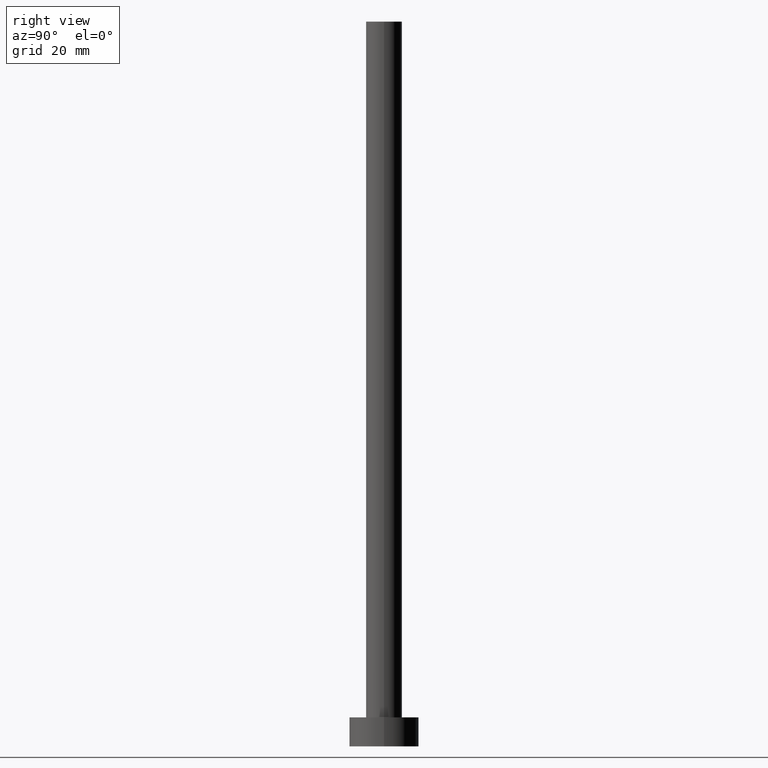
[diagram: clean part render]
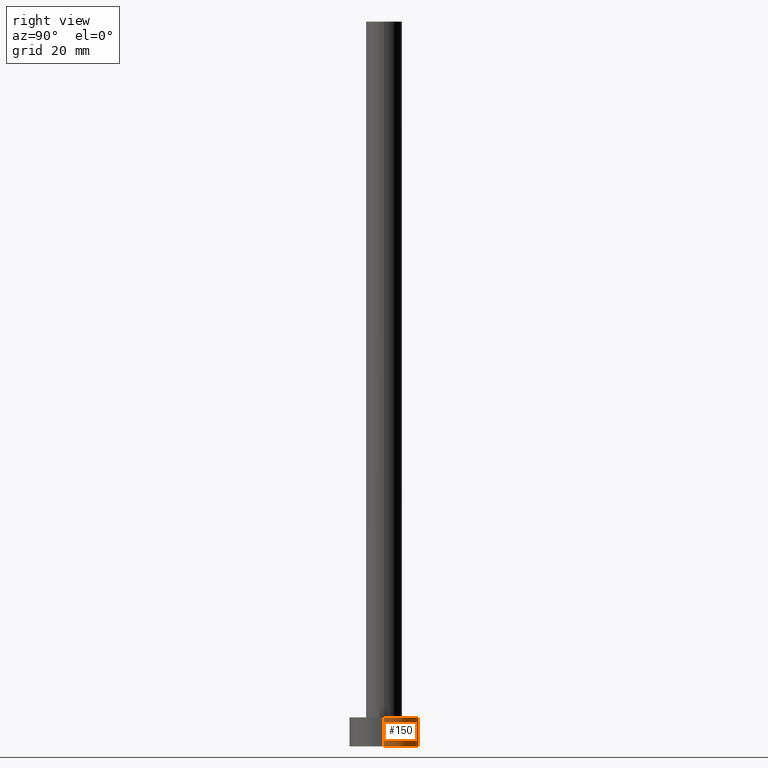
[diagram: same view with one face highlighted and labeled with its STEP entity id]
A machine part, right view. The second image highlights one B-rep face of the part: STEP entity #150.
In plain terms, the highlighted cylindrical surface (edge-blend (fillet) strip) has radius 6 mm, axis along (-0, -0, -1).
Its self-contained STEP definition (entity closure, byte-faithful):
#9 = EDGE_CURVE ( 'NONE', #189, #236, #89, .T. ) ;
#22 = CARTESIAN_POINT ( 'NONE',  ( -6.000000000000000888, 0.000000000000000000, 5.000000000000000000 ) ) ;
#23 = VERTEX_POINT ( 'NONE', #253 ) ;
#40 = EDGE_CURVE ( 'NONE', #23, #236, #247, .T. ) ;
#49 = CARTESIAN_POINT ( 'NONE',  ( 0.000000000000000000, 0.000000000000000000, 0.000000000000000000 ) ) ;
#57 = DIRECTION ( 'NONE',  ( 1.000000000000000000, 0.000000000000000000, 0.000000000000000000 ) ) ;
#59 = CARTESIAN_POINT ( 'NONE',  ( 6.000000000000000888, 7.347880794884120722E-16, 5.000000000000000000 ) ) ;
#75 = CARTESIAN_POINT ( 'NONE',  ( -6.000000000000000888, 0.000000000000000000, 5.000000000000000000 ) ) ;
#77 = CARTESIAN_POINT ( 'NONE',  ( -6.000000000000000888, 0.000000000000000000, 0.000000000000000000 ) ) ;
#78 = FACE_OUTER_BOUND ( 'NONE', #193, .T. ) ;
#79 = CIRCLE ( 'NONE', #218, 6.000000000000000888 ) ;
#89 = LINE ( 'NONE', #22, #145 ) ;
#91 = LINE ( 'NONE', #92, #224 ) ;
#92 = CARTESIAN_POINT ( 'NONE',  ( 6.000000000000000888, 7.347880794884120722E-16, 5.000000000000000000 ) ) ;
#96 = CARTESIAN_POINT ( 'NONE',  ( 0.000000000000000000, 0.000000000000000000, 5.000000000000000000 ) ) ;
#97 = EDGE_CURVE ( 'NONE', #154, #23, #91, .T. ) ;
#117 = CARTESIAN_POINT ( 'NONE',  ( 0.000000000000000000, 0.000000000000000000, 5.000000000000000000 ) ) ;
#131 = DIRECTION ( 'NONE',  ( 1.000000000000000000, 0.000000000000000000, 0.000000000000000000 ) ) ;
#145 = VECTOR ( 'NONE', #212, 1000.000000000000000 ) ;
#150 = ADVANCED_FACE ( 'NONE', ( #78 ), #239, .T. ) ;
#154 = VERTEX_POINT ( 'NONE', #59 ) ;
#155 = ORIENTED_EDGE ( 'NONE', *, *, #9, .F. ) ;
#162 = DIRECTION ( 'NONE',  ( 0.000000000000000000, 0.000000000000000000, 1.000000000000000000 ) ) ;
#171 = DIRECTION ( 'NONE',  ( 0.000000000000000000, 0.000000000000000000, 1.000000000000000000 ) ) ;
#174 = ORIENTED_EDGE ( 'NONE', *, *, #40, .T. ) ;
#178 = DIRECTION ( 'NONE',  ( -0.000000000000000000, -0.000000000000000000, -1.000000000000000000 ) ) ;
#182 = EDGE_CURVE ( 'NONE', #154, #189, #79, .T. ) ;
#184 = DIRECTION ( 'NONE',  ( -0.000000000000000000, -0.000000000000000000, -1.000000000000000000 ) ) ;
#189 = VERTEX_POINT ( 'NONE', #75 ) ;
#193 = EDGE_LOOP ( 'NONE', ( #194, #213, #174, #155 ) ) ;
#194 = ORIENTED_EDGE ( 'NONE', *, *, #182, .F. ) ;
#212 = DIRECTION ( 'NONE',  ( -0.000000000000000000, -0.000000000000000000, -1.000000000000000000 ) ) ;
#213 = ORIENTED_EDGE ( 'NONE', *, *, #97, .T. ) ;
#218 = AXIS2_PLACEMENT_3D ( 'NONE', #117, #162, #57 ) ;
#222 = DIRECTION ( 'NONE',  ( -1.000000000000000000, 0.000000000000000000, 0.000000000000000000 ) ) ;
#224 = VECTOR ( 'NONE', #178, 1000.000000000000000 ) ;
#236 = VERTEX_POINT ( 'NONE', #77 ) ;
#239 = CYLINDRICAL_SURFACE ( 'NONE', #240, 6.000000000000000888 ) ;
#240 = AXIS2_PLACEMENT_3D ( 'NONE', #96, #184, #222 ) ;
#247 = CIRCLE ( 'NONE', #252, 6.000000000000000888 ) ;
#252 = AXIS2_PLACEMENT_3D ( 'NONE', #49, #171, #131 ) ;
#253 = CARTESIAN_POINT ( 'NONE',  ( 6.000000000000000888, 7.347880794884120722E-16, 0.000000000000000000 ) ) ;